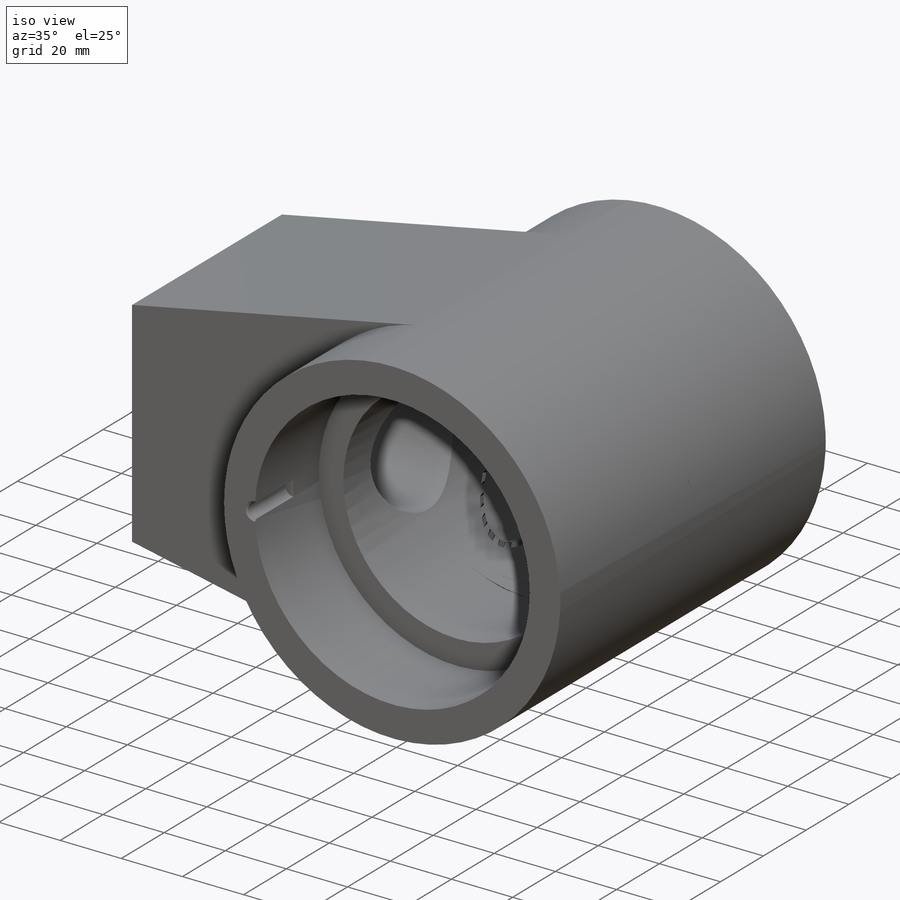
[diagram: iso view]
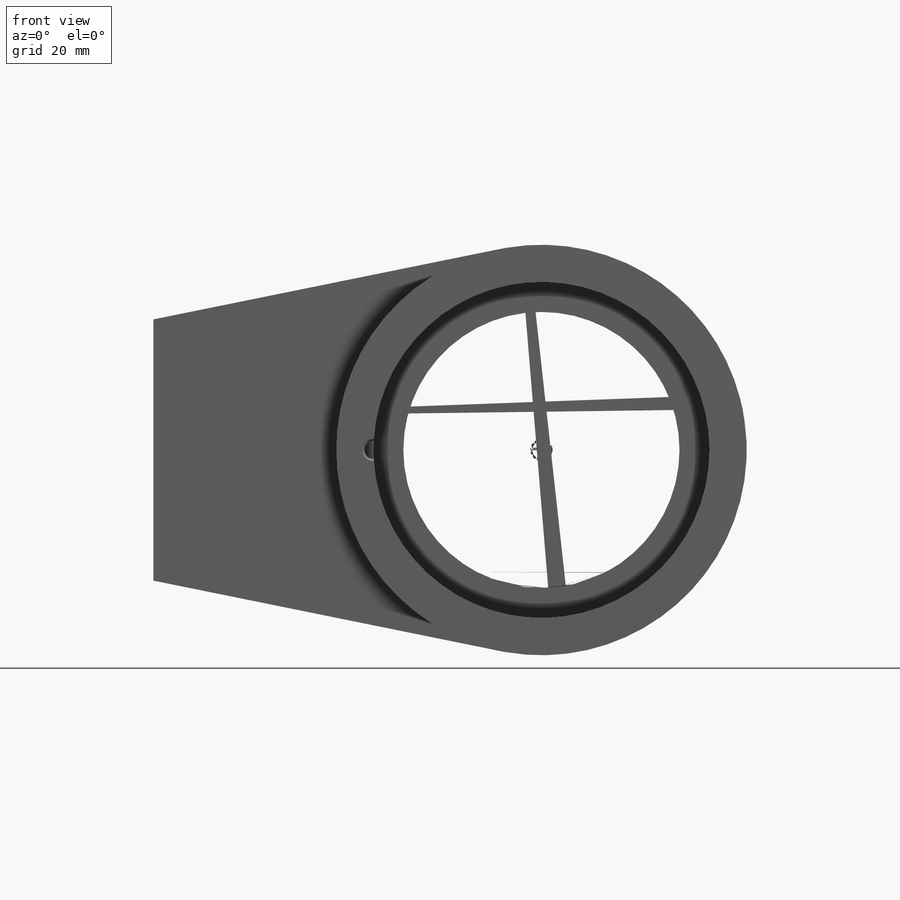
[diagram: front view]
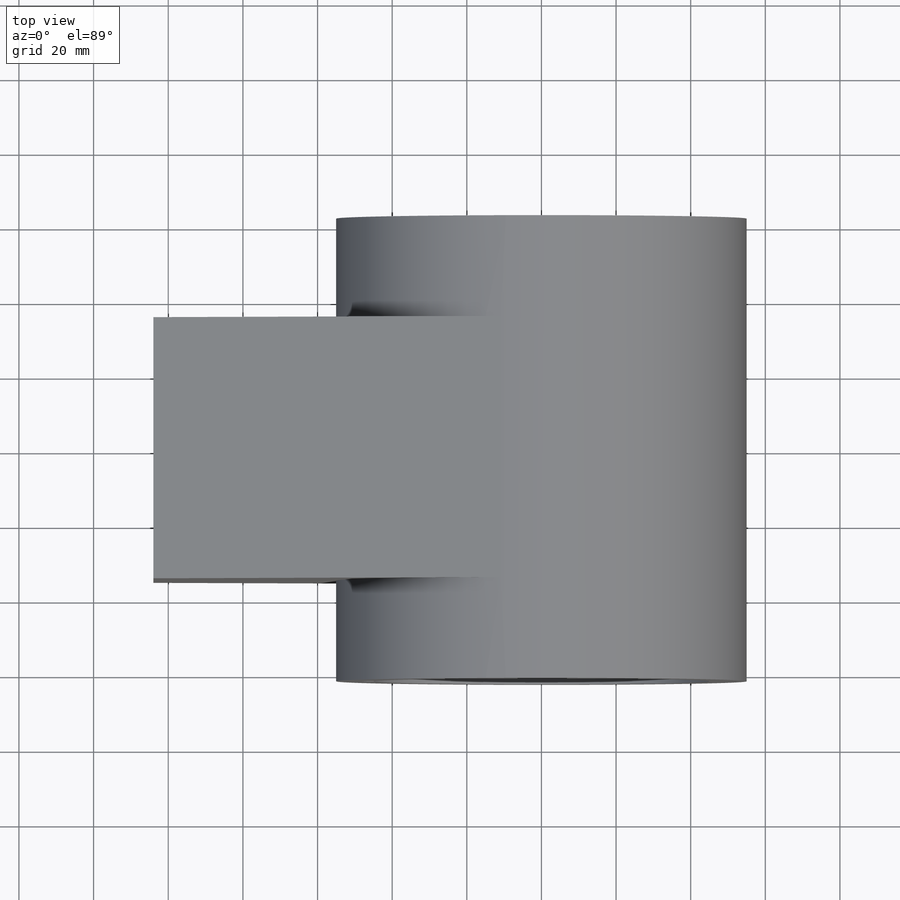
[diagram: top view]
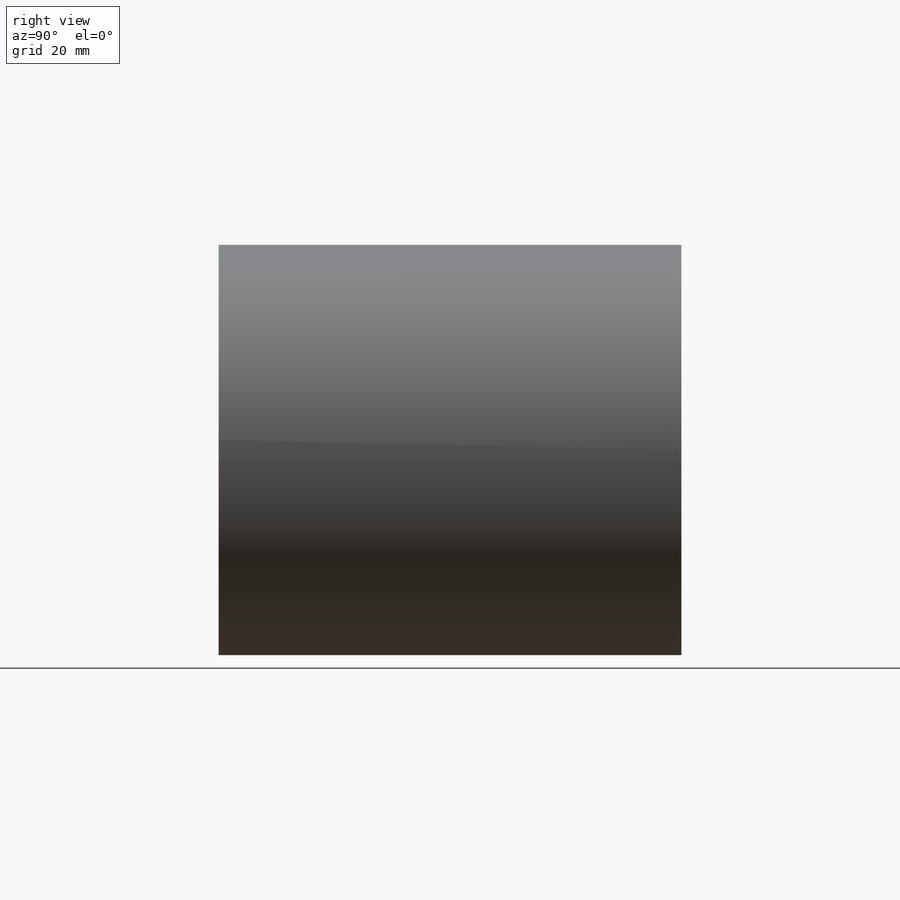
[diagram: right view]
SOLIDWORKS PART (.sldprt)
format: sldprt  version: not decoded by parser v0  size: 333,824 bytes
history: native  units: mm
features: sketch x6, cut_extrude x4, plane x3, mirror x3, extrude x2, thread x2, chamfer x2, material x1 (+9 scaffold rows collapsed)
feature tree (32):
  scaffold x9  (default folders/planes/origin — collapsed)
  material  "Сталь"
  plane  "Спереди"
  plane  "Сверху"
  plane  "Справа"
  sketch  "Эскиз1"  dims[D1=110.0mm]
  extrude  "Бобышка-Вытянуть1"  Depth=124mm
  sketch  "Эскиз2"  dims[D1=70.0mm D2=104.0mm]
  extrude  "Бобышка-Вытянуть2"  Depth=70mm
  mirror  "Зеркальное отражение1"
  sketch  "Эскиз3"  dims[D1=74.0mm]
  cut_extrude  "Вырез-Вытянуть1"  [1 undecoded]
  sketch  "Эскиз4"  dims[D1=90.0mm]
  cut_extrude  "Вырез-Вытянуть2"  Depth=30mm
  mirror  "Зеркальное отражение2"
  sketch  "Эскиз6"  dims[D1=38.704mm]
  cut_extrude  "Вырез-Вытянуть3"  [1 undecoded]
  thread  "Условное изображение резьбы1"  Diameter=42mm  [1 undecoded]
  chamfer  "Фаска2"  Distance=1.648mm Angle=45deg
  sketch  "Эскиз9"  dims[D1=4.891mm]
  cut_extrude  "Вырез-Вытянуть5"  [1 undecoded]
  thread  "Условное изображение резьбы2"  Diameter=6mm  [1 undecoded]
  mirror  "Зеркальное отражение3"
  chamfer  "Фаска3"  Distance=0.5545mm Angle=45deg
decode coverage: 13 of 19 modeling features carry decoded parameters
note: 5 parameter values undecoded
summary: no parameter record found for 3 features
note: suppression state not decoded; provenance and decode notes live in map.json
